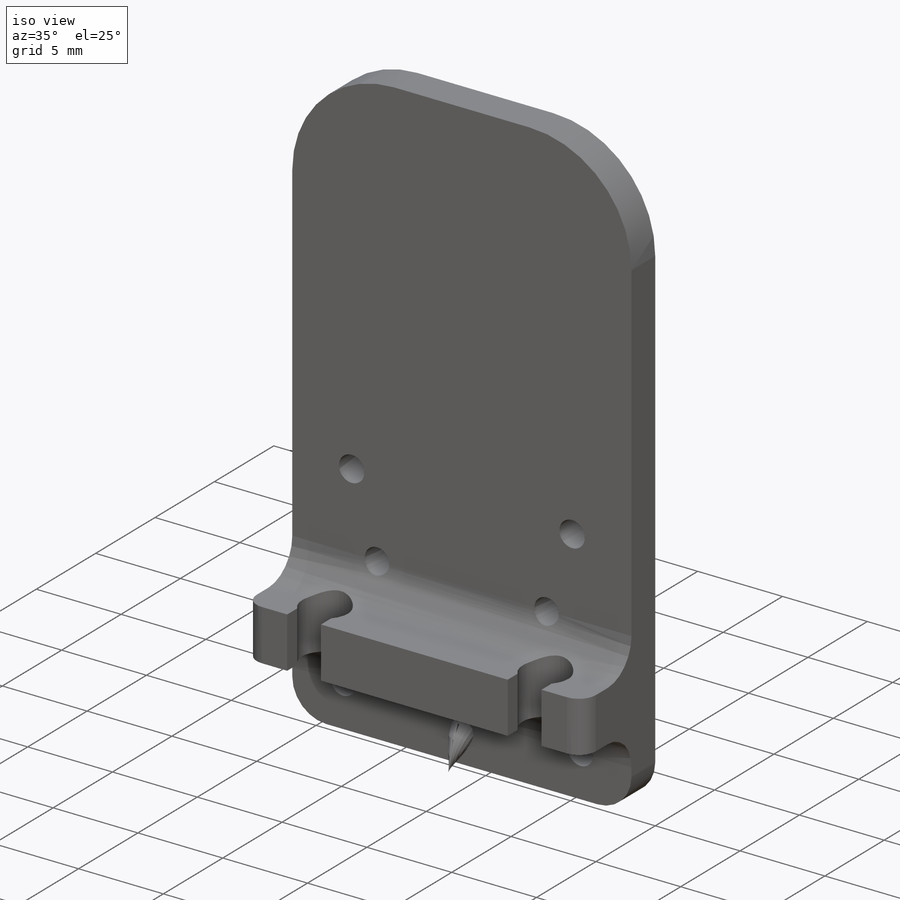
[diagram: iso view]
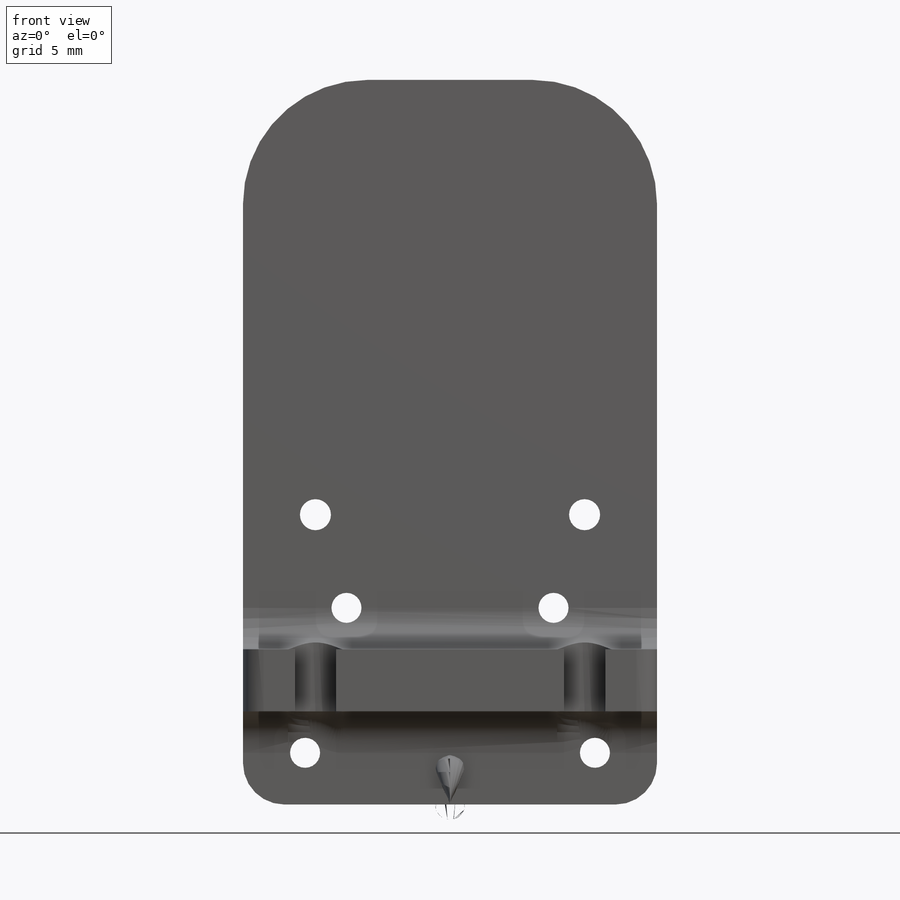
[diagram: front view]
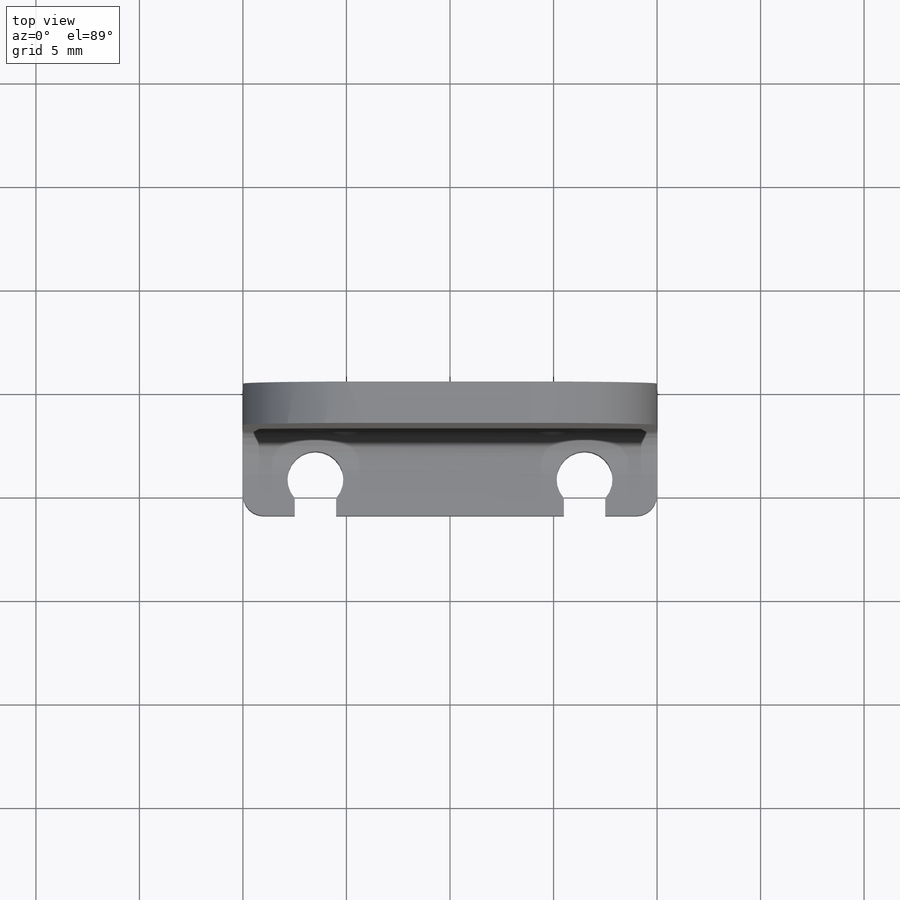
[diagram: top view]
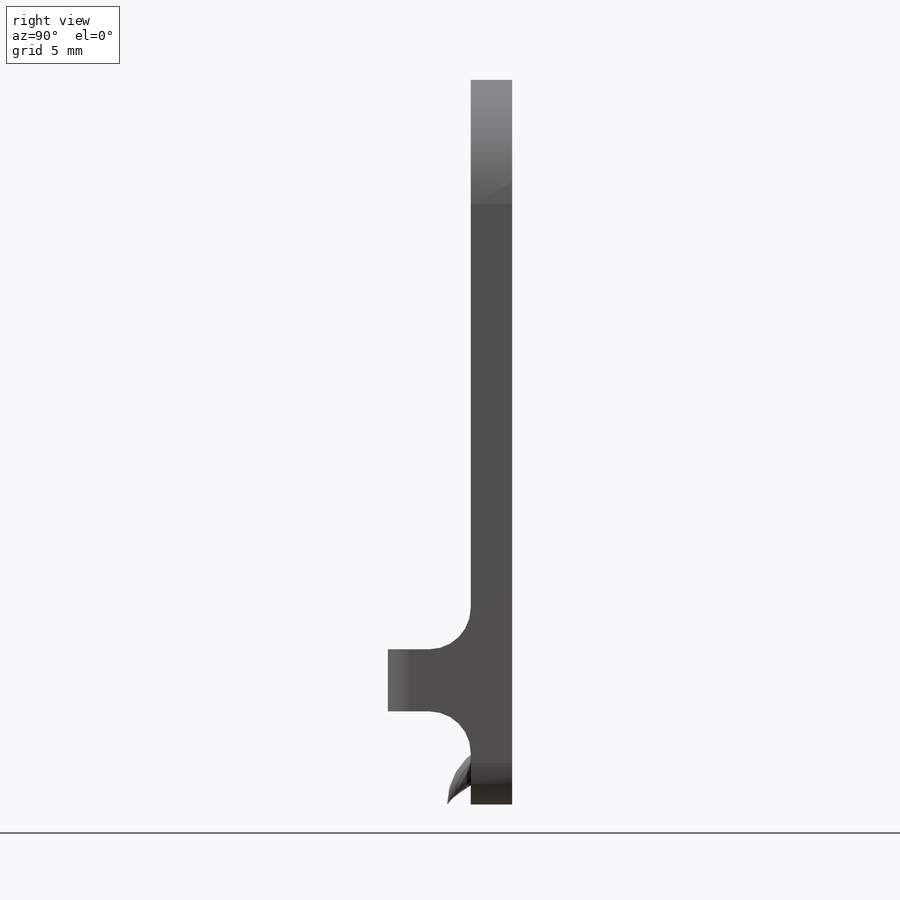
[diagram: right view]
SOLIDWORKS PART (.sldprt)
format: sldprt  version: not decoded by parser v0  size: 327,680 bytes
history: native  units: mm
features: sketch x4, extrude x3, material x1, cut_extrude x1, fillet x1 + 1 further entry (+17 scaffold rows collapsed; 3 parser-record rows omitted)
feature tree (31):
  scaffold x17  (default folders/planes/origin — collapsed)
  material  "ABS"
  "RobotHandParameters"
  parser-record x3  (decoder bookkeeping rows leaked as tree rows — omitted from the tree; the rows remain in map.json)
  sketch  "Sketch1"  dims[c1.D1=1.0mm c1.D2=1.5mm c1.D3=2.0mm c1.D4=5.0mm c2.D3=5.0mm c2.D4=2.0mm c3.D3=1.45mm c3.D10=1.5mm c3.D5=0.25mm c3.D6=3.0mm c3.D7=8.0mm c3.D8=3.0mm c3.D9=0.25mm c4.D10=7.0mm c4.D11=8.5mm c4.D12=20.0mm c4.D13=35.0mm c4.D2=10.0mm c4.D4=3.0mm c4.D5=2.5mm c4.D6=5.0mm c4.D7=9.5mm c4.D8=14.0mm c4.D9=3.5mm]
  extrude  "Distal"  Depth=2mm
  sketch  "Sketch2"  dims[D1=3.0mm D2=4.5mm]
  extrude  "Tube Plate 1"  Depth=3.75mm
  sketch  "Sketch3"  dims[c1.D3=2.7mm c1.D1=5.25mm c1.D2=6.25mm c1.D4=1.0mm c1.D5=1.0mm c2.D4=2.0mm c2.D2=3.5mm c2.D1=1.0mm c2.D5=4.25mm c3.D1=1.75mm c3.D5=4.25mm]
  cut_extrude  "Tube Plate 2"  [1 undecoded]
  sketch  "Sketch4"  dims[D1=22.55mm]
  extrude  "Distal Support"  Depth=2mm
  fillet  "Distal Contouring"  Radius=2mm
decode coverage: 8 of 9 modeling features carry decoded parameters; 1 rows unclassified (native names shown)
note: 1 parameter value undecoded
note: suppression state not decoded; provenance and decode notes live in map.json
